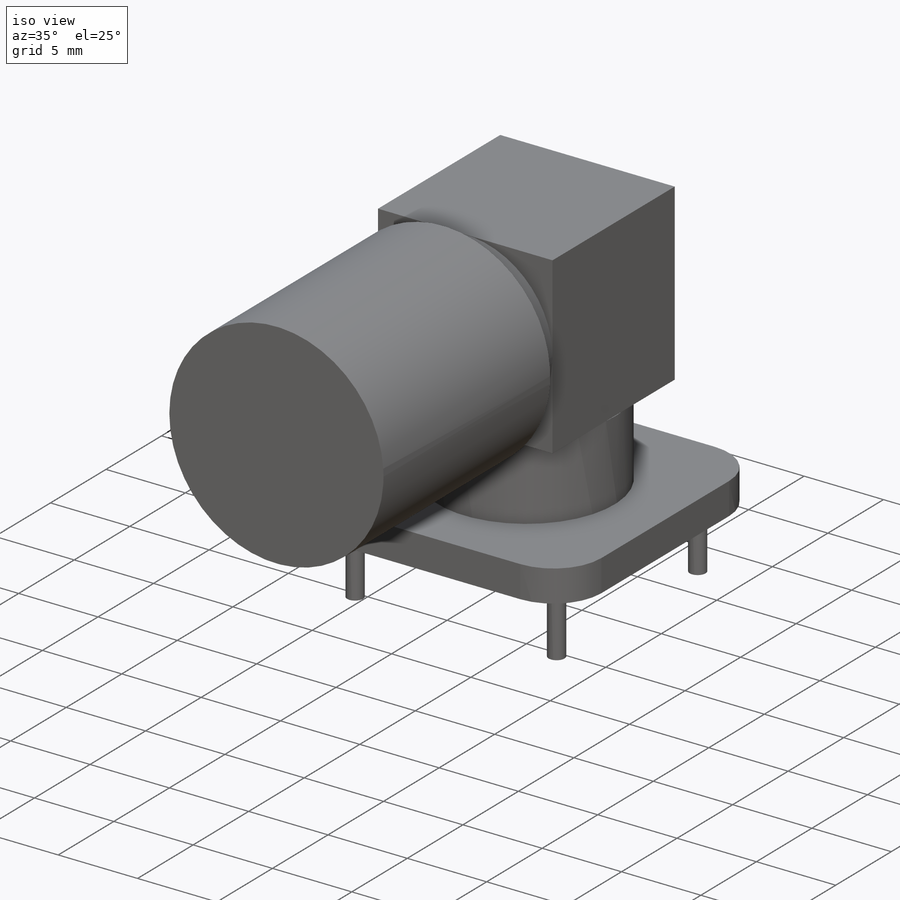
[diagram: iso view]
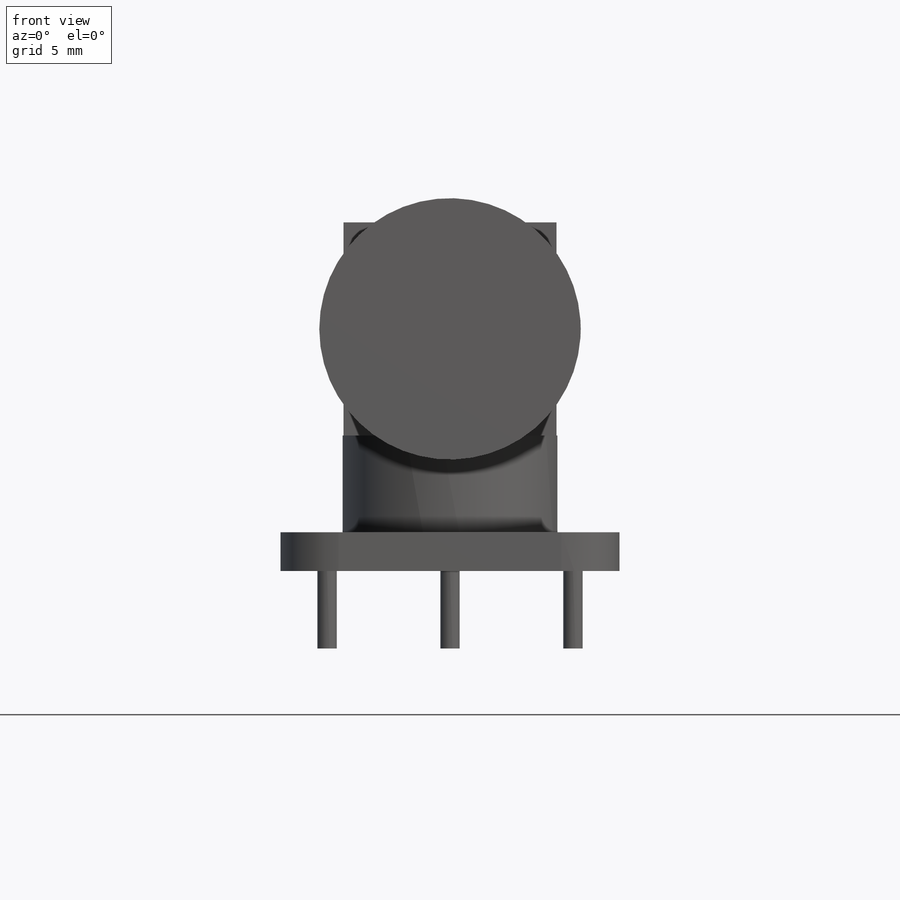
[diagram: front view]
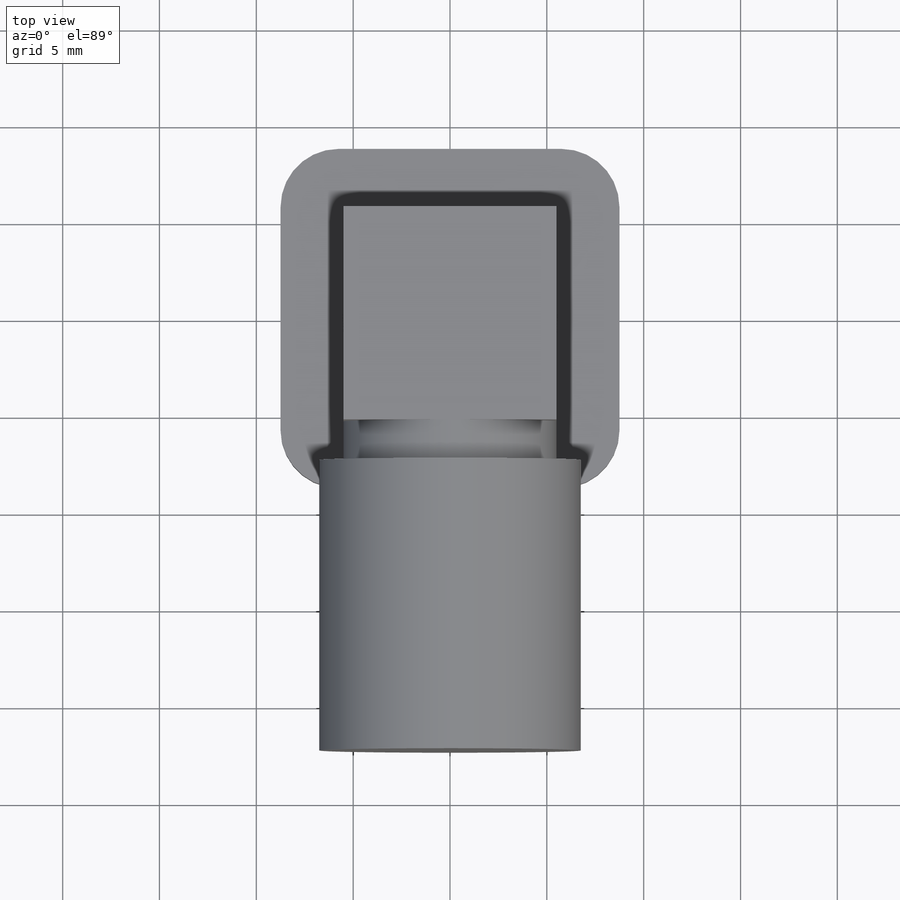
[diagram: top view]
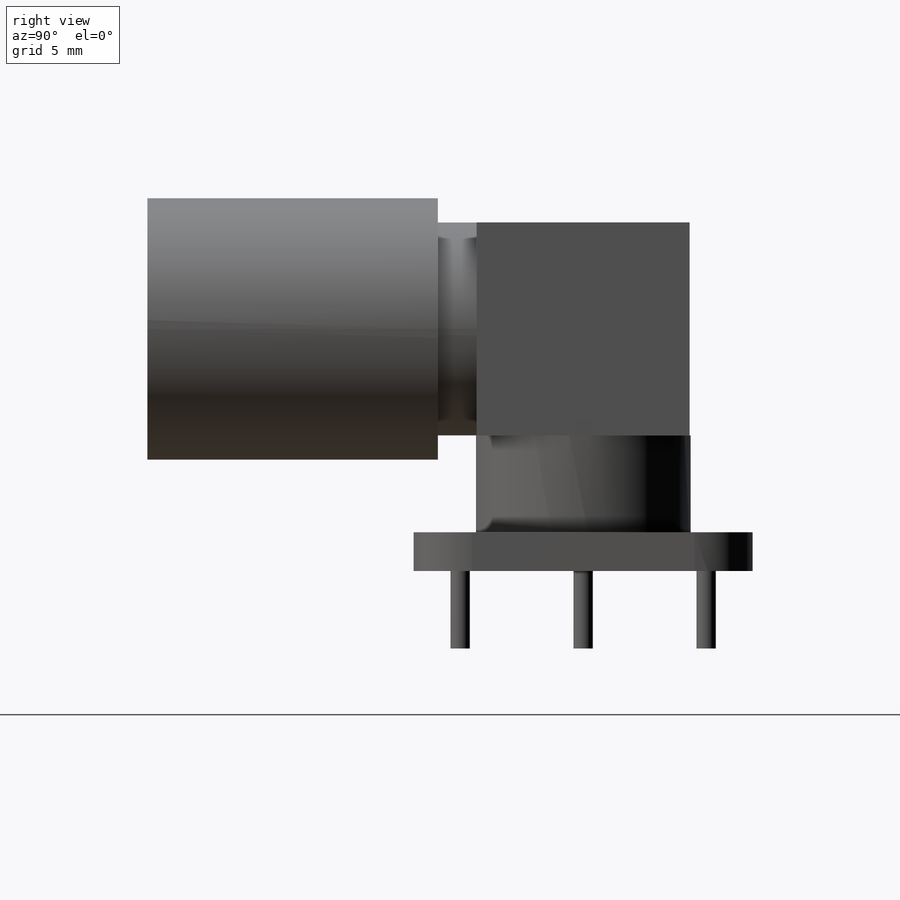
[diagram: right view]
SOLIDWORKS PART (.sldprt)
format: sldprt  version: not decoded by parser v0  size: 247,296 bytes
history: native  units: mm
features: sketch x6, extrude x6, plane x3, material x1 (+9 scaffold rows collapsed)
feature tree (25):
  scaffold x9  (default folders/planes/origin — collapsed)
  material  "Material <nicht festgelegt>"
  plane  "Ebene vorne"
  plane  "Ebene oben"
  plane  "Ebene rechts"
  sketch  "Skizze1"  dims[D3=3.0mm D1=17.5mm D2=17.5mm]
  extrude  "Aufsatz-Linear austragen1"  Depth=2mm
  sketch  "Skizze2"  dims[D2=1.0mm D1=12.7mm]
  extrude  "Aufsatz-Linear austragen2"  Depth=4mm
  sketch  "Skizze3"  dims[D1=11.1mm]
  extrude  "Aufsatz-Linear austragen3"  Depth=5mm
  sketch  "Skizze4"  dims[D1=11.0mm]
  extrude  "Aufsatz-Linear austragen4"  Depth=11mm
  sketch  "Skizze5"  dims[D1=11.0mm]
  extrude  "Aufsatz-Linear austragen6"  Depth=10mm
  sketch  "Skizze6"  dims[D1=13.5mm]
  extrude  "Aufsatz-Linear austragen7"  Depth=15mm
decode coverage: 12 of 12 modeling features carry decoded parameters
note: suppression state not decoded; provenance and decode notes live in map.json
